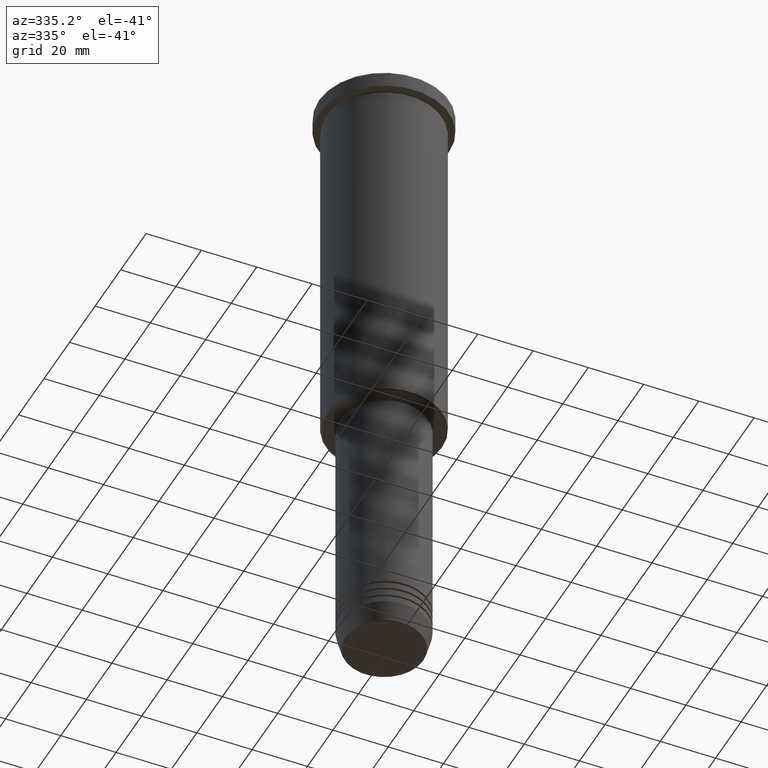
[diagram: clean part render]
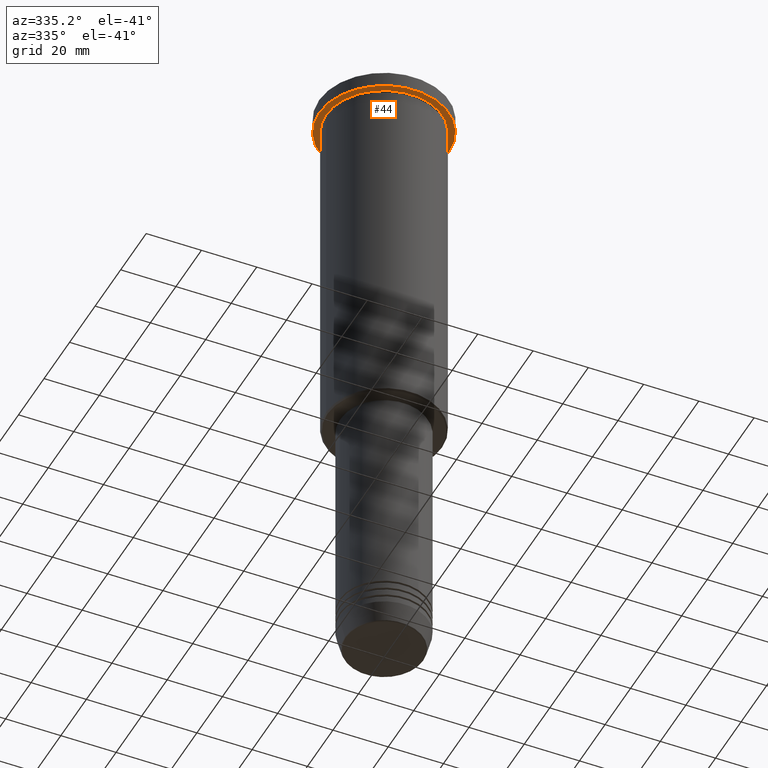
[diagram: same view with one face highlighted and labeled with its STEP entity id]
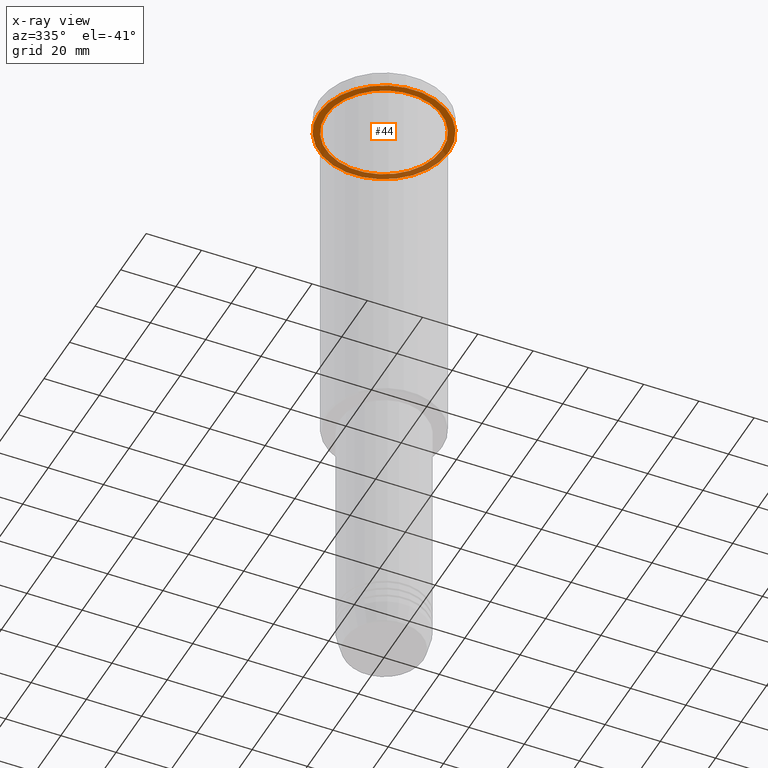
[diagram: x-ray of the same camera — body ghosted, the highlighted face saturated]
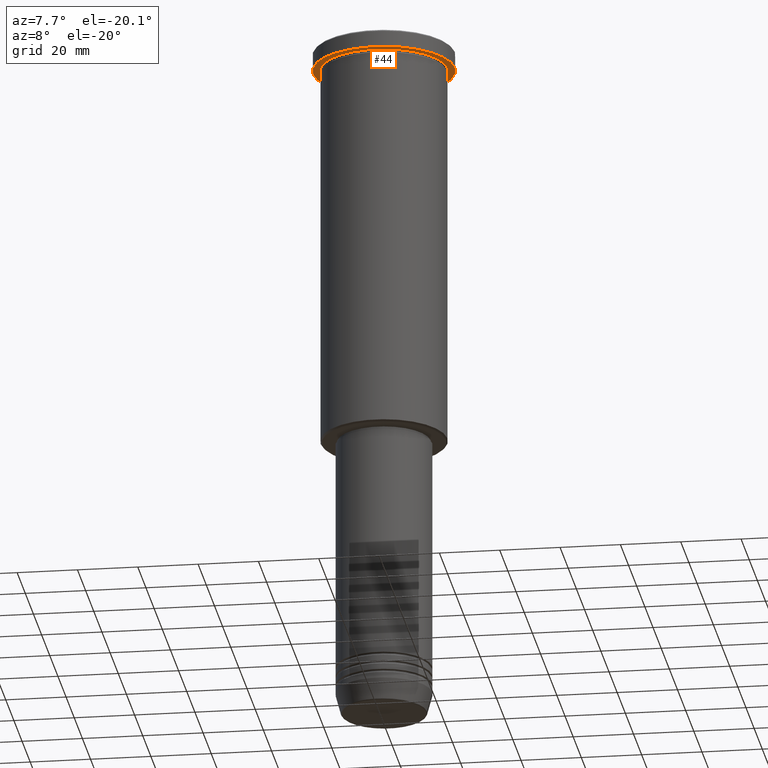
[diagram: same view with one face highlighted and labeled with its STEP entity id]
A machine part, auxiliary view. The second image highlights one B-rep face of the part: STEP entity #44.
The next image is the same camera in x-ray: the body ghosted, the highlighted face saturated — about 35% of this face is hidden behind the body in this view.
A second angle (auxiliary view) of the same face is appended — the face is thin or edge-on in the first view.
In plain terms, the highlighted planar face has unit normal (0, 0, -1).
Its self-contained STEP definition (entity closure, byte-faithful):
#10 = CARTESIAN_POINT ( 'NONE',  ( -21.00000000000000000, 0.000000000000000000, -5.999999999999994671 ) ) ;
#44 = ADVANCED_FACE ( 'NONE', ( #739, #372 ), #839, .T. ) ;
#54 = EDGE_CURVE ( 'NONE', #741, #186, #1163, .T. ) ;
#74 = CARTESIAN_POINT ( 'NONE',  ( 0.000000000000000000, 0.000000000000000000, -5.999999999999994671 ) ) ;
#111 = EDGE_CURVE ( 'NONE', #186, #741, #278, .T. ) ;
#115 = VERTEX_POINT ( 'NONE', #549 ) ;
#116 = CARTESIAN_POINT ( 'NONE',  ( 0.000000000000000000, 0.000000000000000000, -5.999999999999994671 ) ) ;
#123 = ORIENTED_EDGE ( 'NONE', *, *, #772, .F. ) ;
#165 = DIRECTION ( 'NONE',  ( -0.000000000000000000, -0.000000000000000000, 1.000000000000000000 ) ) ;
#186 = VERTEX_POINT ( 'NONE', #10 ) ;
#235 = ORIENTED_EDGE ( 'NONE', *, *, #111, .T. ) ;
#262 = DIRECTION ( 'NONE',  ( 1.000000000000000000, 0.000000000000000000, 0.000000000000000000 ) ) ;
#264 = AXIS2_PLACEMENT_3D ( 'NONE', #908, #1102, #477 ) ;
#277 = ORIENTED_EDGE ( 'NONE', *, *, #54, .T. ) ;
#278 = CIRCLE ( 'NONE', #949, 21.00000000000000000 ) ;
#372 = FACE_OUTER_BOUND ( 'NONE', #686, .T. ) ;
#416 = EDGE_CURVE ( 'NONE', #115, #954, #679, .T. ) ;
#477 = DIRECTION ( 'NONE',  ( 1.000000000000000000, 0.000000000000000000, 0.000000000000000000 ) ) ;
#496 = AXIS2_PLACEMENT_3D ( 'NONE', #1114, #653, #842 ) ;
#502 = EDGE_LOOP ( 'NONE', ( #235, #277 ) ) ;
#525 = ORIENTED_EDGE ( 'NONE', *, *, #416, .F. ) ;
#549 = CARTESIAN_POINT ( 'NONE',  ( 23.50000000000000000, 0.000000000000000000, -5.999999999999994671 ) ) ;
#653 = DIRECTION ( 'NONE',  ( 0.000000000000000000, 0.000000000000000000, -1.000000000000000000 ) ) ;
#679 = CIRCLE ( 'NONE', #1126, 23.50000000000000000 ) ;
#686 = EDGE_LOOP ( 'NONE', ( #525, #123 ) ) ;
#739 = FACE_BOUND ( 'NONE', #502, .T. ) ;
#741 = VERTEX_POINT ( 'NONE', #984 ) ;
#743 = CIRCLE ( 'NONE', #264, 23.50000000000000000 ) ;
#753 = CARTESIAN_POINT ( 'NONE',  ( 0.000000000000000000, 0.000000000000000000, -5.999999999999994671 ) ) ;
#772 = EDGE_CURVE ( 'NONE', #954, #115, #743, .T. ) ;
#839 = PLANE ( 'NONE',  #496 ) ;
#842 = DIRECTION ( 'NONE',  ( -1.000000000000000000, 0.000000000000000000, -0.000000000000000000 ) ) ;
#843 = AXIS2_PLACEMENT_3D ( 'NONE', #753, #1118, #1121 ) ;
#908 = CARTESIAN_POINT ( 'NONE',  ( 0.000000000000000000, 0.000000000000000000, -5.999999999999994671 ) ) ;
#949 = AXIS2_PLACEMENT_3D ( 'NONE', #74, #1005, #1081 ) ;
#954 = VERTEX_POINT ( 'NONE', #959 ) ;
#959 = CARTESIAN_POINT ( 'NONE',  ( -23.50000000000000000, 2.877919977996280320E-15, -5.999999999999994671 ) ) ;
#984 = CARTESIAN_POINT ( 'NONE',  ( 21.00000000000000000, 2.571758278209441661E-15, -5.999999999999994671 ) ) ;
#1005 = DIRECTION ( 'NONE',  ( -0.000000000000000000, -0.000000000000000000, 1.000000000000000000 ) ) ;
#1081 = DIRECTION ( 'NONE',  ( -1.000000000000000000, 0.000000000000000000, 0.000000000000000000 ) ) ;
#1102 = DIRECTION ( 'NONE',  ( -0.000000000000000000, -0.000000000000000000, 1.000000000000000000 ) ) ;
#1114 = CARTESIAN_POINT ( 'NONE',  ( 0.000000000000000000, 23.50000000000000000, -5.999999999999994671 ) ) ;
#1118 = DIRECTION ( 'NONE',  ( -0.000000000000000000, -0.000000000000000000, 1.000000000000000000 ) ) ;
#1121 = DIRECTION ( 'NONE',  ( -1.000000000000000000, 0.000000000000000000, 0.000000000000000000 ) ) ;
#1126 = AXIS2_PLACEMENT_3D ( 'NONE', #116, #165, #262 ) ;
#1163 = CIRCLE ( 'NONE', #843, 21.00000000000000000 ) ;